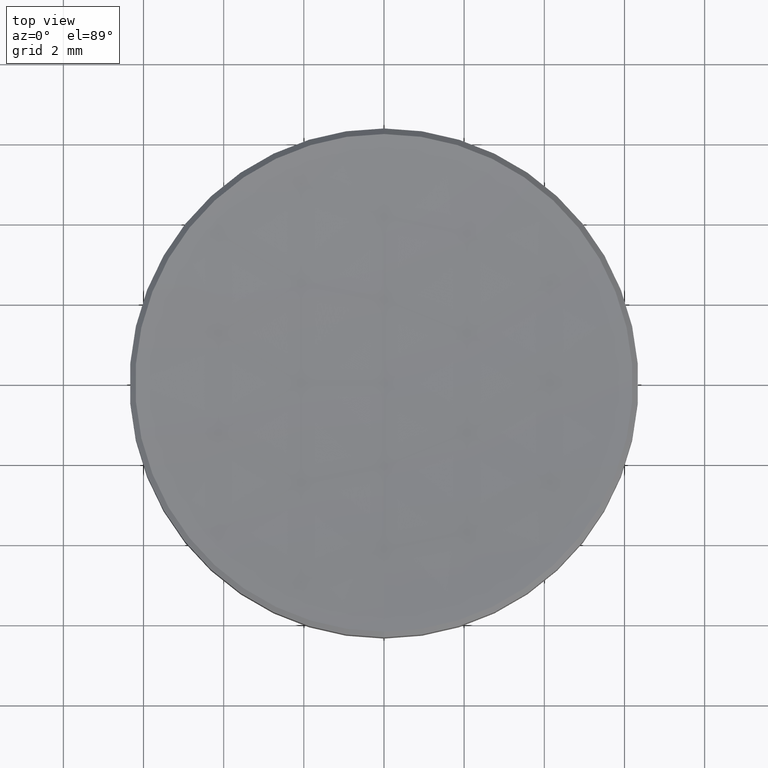
[diagram: clean part render]
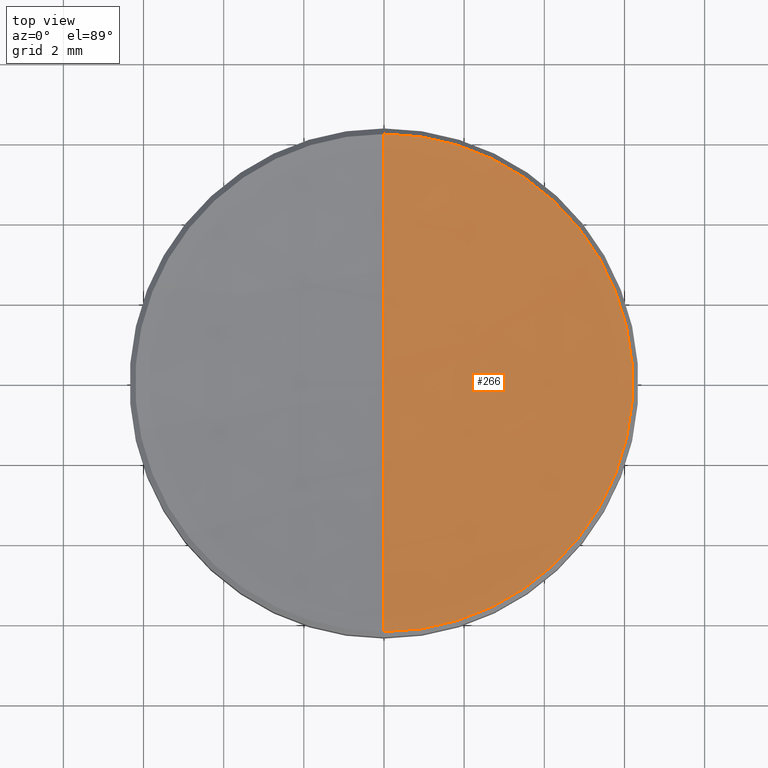
[diagram: same view with one face highlighted and labeled with its STEP entity id]
A machine part, top view. The second image highlights one B-rep face of the part: STEP entity #266.
In plain terms, the highlighted spherical surface has radius 52.786 mm.
Its self-contained STEP definition (entity closure, byte-faithful):
#22 = CARTESIAN_POINT ( 'NONE',  ( 0.0000000000000000000, -2.649717242950314800E-018, 0.06593401819551519800 ) ) ;
#50 = DIRECTION ( 'NONE',  ( -1.224646799147353200E-016, -1.000000000000000000, 0.0000000000000000000 ) ) ;
#58 = EDGE_LOOP ( 'NONE', ( #91, #281, #170 ) ) ;
#64 = AXIS2_PLACEMENT_3D ( 'NONE', #22, #65, #250 ) ;
#65 = DIRECTION ( 'NONE',  ( -0.0000000000000000000, -1.836909530733566100E-016, 1.000000000000000000 ) ) ;
#70 = DIRECTION ( 'NONE',  ( 0.0000000000000000000, 1.000000000000000000, 1.314533001914755700E-016 ) ) ;
#71 = VERTEX_POINT ( 'NONE', #117 ) ;
#77 = DIRECTION ( 'NONE',  ( -1.000000000000000000, 1.224646799147353200E-016, 2.249565377136128300E-032 ) ) ;
#85 = AXIS2_PLACEMENT_3D ( 'NONE', #198, #194, #180 ) ;
#91 = ORIENTED_EDGE ( 'NONE', *, *, #210, .F. ) ;
#98 = CIRCLE ( 'NONE', #116, 2.078188976377952600 ) ;
#101 = CARTESIAN_POINT ( 'NONE',  ( 0.0000000000000000000, 0.0000000000000000000, 2.129698129338585000 ) ) ;
#105 = SPHERICAL_SURFACE ( 'NONE', #147, 2.078188976377952600 ) ;
#113 = CIRCLE ( 'NONE', #64, 0.2444322300693972100 ) ;
#116 = AXIS2_PLACEMENT_3D ( 'NONE', #101, #77, #50 ) ;
#117 = CARTESIAN_POINT ( 'NONE',  ( -2.993431481629359100E-017, -0.2444322300693961800, 0.06593401819551519800 ) ) ;
#147 = AXIS2_PLACEMENT_3D ( 'NONE', #271, #251, #70 ) ;
#151 = EDGE_CURVE ( 'NONE', #71, #212, #113, .T. ) ;
#161 = CIRCLE ( 'NONE', #85, 2.078188976377952600 ) ;
#170 = ORIENTED_EDGE ( 'NONE', *, *, #151, .T. ) ;
#180 = DIRECTION ( 'NONE',  ( 0.0000000000000000000, 0.0000000000000000000, -1.000000000000000000 ) ) ;
#194 = DIRECTION ( 'NONE',  ( 1.000000000000000000, 0.0000000000000000000, 0.0000000000000000000 ) ) ;
#198 = CARTESIAN_POINT ( 'NONE',  ( 0.0000000000000000000, 0.0000000000000000000, 2.129698129338585000 ) ) ;
#201 = CARTESIAN_POINT ( 'NONE',  ( 0.0000000000000000000, 0.2444322300693965700, 0.06593401819551524000 ) ) ;
#210 = EDGE_CURVE ( 'NONE', #312, #212, #161, .T. ) ;
#212 = VERTEX_POINT ( 'NONE', #201 ) ;
#227 = EDGE_CURVE ( 'NONE', #312, #71, #98, .T. ) ;
#250 = DIRECTION ( 'NONE',  ( 0.0000000000000000000, -1.000000000000000000, -1.746296913827006200E-016 ) ) ;
#251 = DIRECTION ( 'NONE',  ( -1.000000000000000000, 0.0000000000000000000, 0.0000000000000000000 ) ) ;
#266 = ADVANCED_FACE ( 'NONE', ( #294 ), #105, .F. ) ;
#271 = CARTESIAN_POINT ( 'NONE',  ( 0.0000000000000000000, 0.0000000000000000000, 2.129698129338585000 ) ) ;
#281 = ORIENTED_EDGE ( 'NONE', *, *, #227, .T. ) ;
#282 = CARTESIAN_POINT ( 'NONE',  ( 0.0000000000000000000, 5.089968876346382000E-016, 0.05150915296063240300 ) ) ;
#294 = FACE_OUTER_BOUND ( 'NONE', #58, .T. ) ;
#312 = VERTEX_POINT ( 'NONE', #282 ) ;